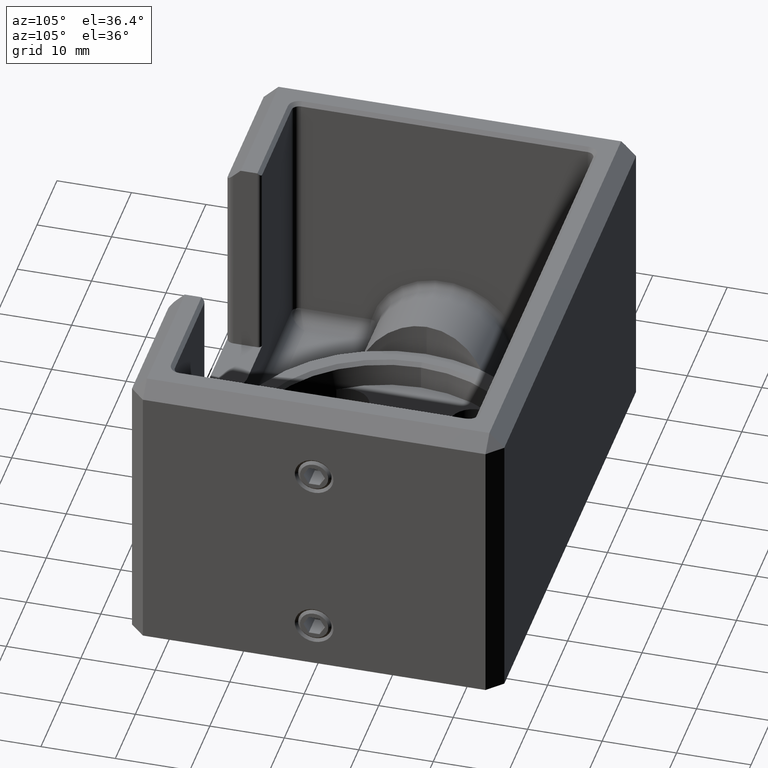
[diagram: clean part render]
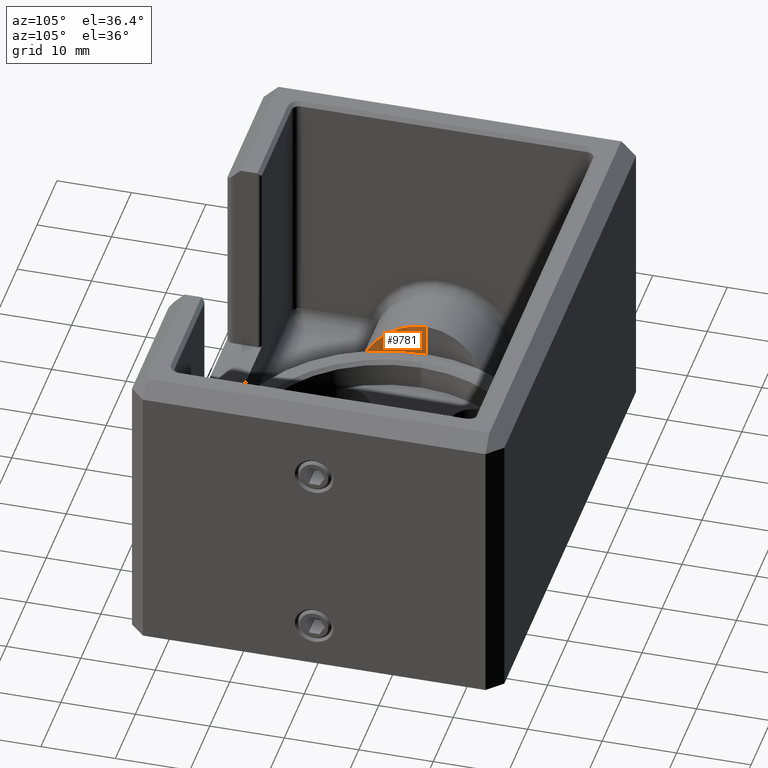
[diagram: same view with one face highlighted and labeled with its STEP entity id]
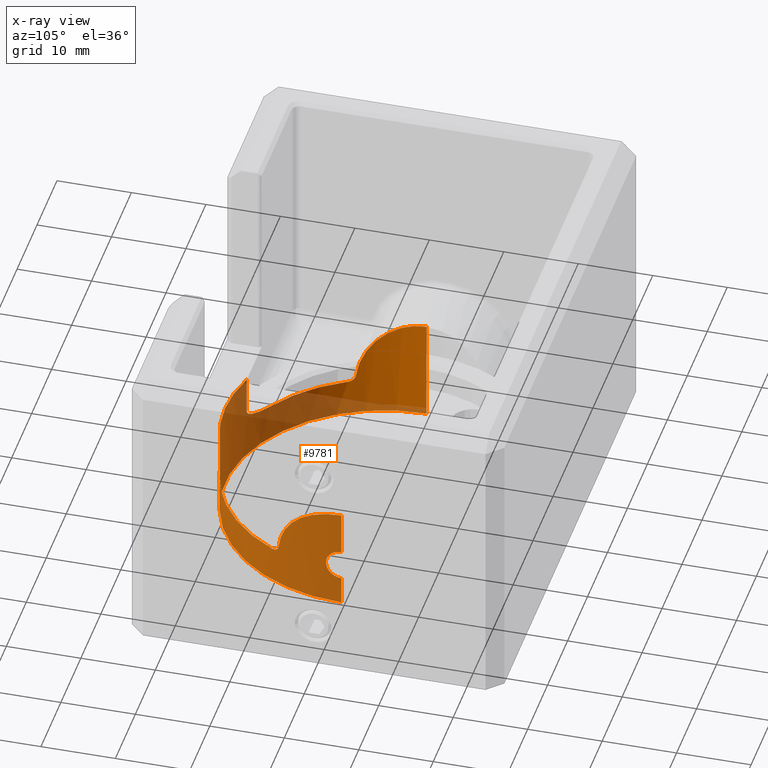
[diagram: x-ray of the same camera — body ghosted, the highlighted face saturated]
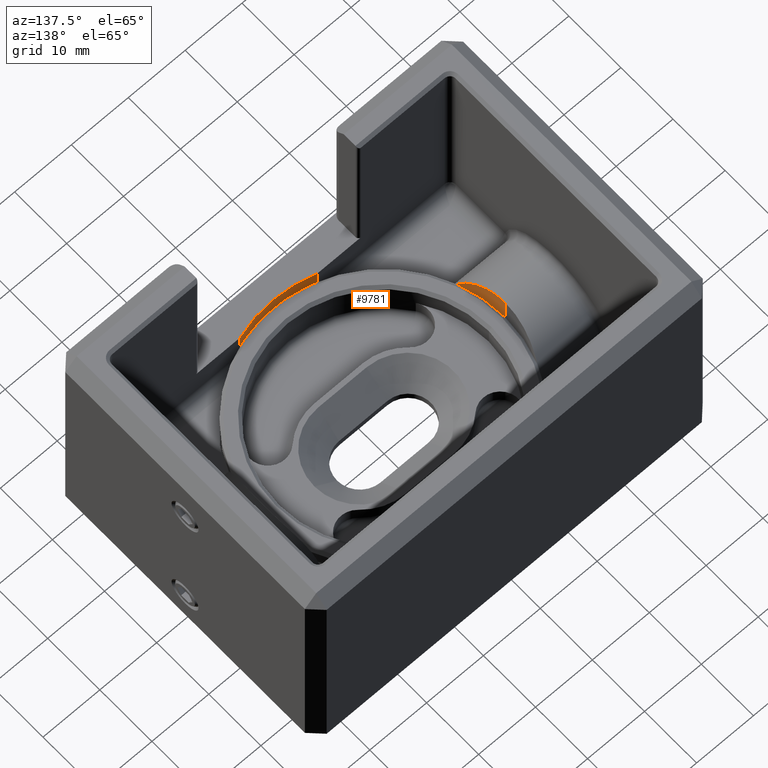
[diagram: same view with one face highlighted and labeled with its STEP entity id]
A machine part, auxiliary view. The second image highlights one B-rep face of the part: STEP entity #9781.
The next image is the same camera in x-ray: the body ghosted, the highlighted face saturated — about 68% of this face is hidden behind the body in this view.
A second angle (auxiliary view) of the same face is appended — the face is thin or edge-on in the first view.
In plain terms, the highlighted cylindrical surface (partial cylindrical patch) has radius 21.35 mm, axis along (0, 0, -1).
Its self-contained STEP definition (entity closure, byte-faithful):
#66 = AXIS2_PLACEMENT_3D ( 'NONE', #24698, #21131, #20793 ) ;
#226 = CARTESIAN_POINT ( 'NONE',  ( 6.897454490074142800, -20.20520898221429800, -13.43337875035638100 ) ) ;
#277 = CARTESIAN_POINT ( 'NONE',  ( 19.40728424377416800, -8.898520869713557600, -13.53916474196333500 ) ) ;
#481 = VERTEX_POINT ( 'NONE', #25150 ) ;
#522 = AXIS2_PLACEMENT_3D ( 'NONE', #11490, #21026, #23079 ) ;
#546 = VERTEX_POINT ( 'NONE', #3819 ) ;
#570 = ORIENTED_EDGE ( 'NONE', *, *, #11623, .F. ) ;
#616 = VERTEX_POINT ( 'NONE', #12023 ) ;
#622 = LINE ( 'NONE', #19117, #3045 ) ;
#1053 = CARTESIAN_POINT ( 'NONE',  ( -21.34457303634226100, -0.5563292019188824700, -6.012850639826334400 ) ) ;
#1085 = EDGE_CURVE ( 'NONE', #4277, #9054, #622, .T. ) ;
#1110 = CARTESIAN_POINT ( 'NONE',  ( 21.33965744953615500, -0.6765489511546167700, -12.00720468059319200 ) ) ;
#1135 = CARTESIAN_POINT ( 'NONE',  ( -20.87033471673592200, -4.506528579112247400, -7.204718538386204700 ) ) ;
#1449 = CARTESIAN_POINT ( 'NONE',  ( 21.05973220045990500, -3.518199210605375400, -6.711561277646654700 ) ) ;
#1480 = CARTESIAN_POINT ( 'NONE',  ( -19.38124093034293000, -8.954886933959583600, -14.10000000000000100 ) ) ;
#1536 = CIRCLE ( 'NONE', #8771, 21.35000000000000100 ) ;
#1557 = CARTESIAN_POINT ( 'NONE',  ( -21.35000000000000100, 0.0000000000000000000, -3.000000000000002700 ) ) ;
#1704 = CARTESIAN_POINT ( 'NONE',  ( 21.17883477685786500, -2.747661124834051400, -6.411977707186371900 ) ) ;
#1719 = EDGE_CURVE ( 'NONE', #24705, #546, #1536, .T. ) ;
#1805 = DIRECTION ( 'NONE',  ( 0.0000000000000000000, 0.0000000000000000000, -1.000000000000000000 ) ) ;
#2085 = CARTESIAN_POINT ( 'NONE',  ( 19.45683690325620300, -8.791069925867468300, -12.99454204343505000 ) ) ;
#2142 = ORIENTED_EDGE ( 'NONE', *, *, #21732, .T. ) ;
#2432 = LINE ( 'NONE', #2685, #13409 ) ;
#2685 = CARTESIAN_POINT ( 'NONE',  ( 21.35000000000000100, 2.614620916179599200E-015, -3.000000000000002700 ) ) ;
#2693 = VERTEX_POINT ( 'NONE', #6392 ) ;
#2881 = CARTESIAN_POINT ( 'NONE',  ( 21.34345156119554300, -0.5456270237093198100, -11.96747945263901900 ) ) ;
#2911 = CARTESIAN_POINT ( 'NONE',  ( -20.35749264248599700, -6.447649486485225600, -8.697247440804131800 ) ) ;
#2962 = CARTESIAN_POINT ( 'NONE',  ( 21.34349383741498900, -0.5438794262529336200, -16.03296225912980700 ) ) ;
#3001 = VERTEX_POINT ( 'NONE', #5689 ) ;
#3040 = CARTESIAN_POINT ( 'NONE',  ( 21.32436268798805700, -1.052196298051470300, -15.82255682788826700 ) ) ;
#3045 = VECTOR ( 'NONE', #11269, 1000.000000000000000 ) ;
#3163 = CARTESIAN_POINT ( 'NONE',  ( -19.40729494845407300, -8.898497701360714300, -13.53893421975653100 ) ) ;
#3185 = B_SPLINE_CURVE_WITH_KNOTS ( 'NONE', 3,
 ( #15448, #12257, #8415, #226, #13880, #19773, #4132, #8073, #21725, #4210, #17921, #6601, #4648, #10637, #18413, #8581 ),
 .UNSPECIFIED., .F., .F.,
 ( 4, 2, 2, 2, 2, 2, 2, 4 ),
 ( 0.0000000000000000000, 0.0003439432819631507300, 0.0006878865639263014600, 0.001375773127852604600, 0.002063659691778907800, 0.002751546255705211000, 0.004127319383557813100, 0.005503092511410415100 ),
 .UNSPECIFIED. ) ;
#3225 = CARTESIAN_POINT ( 'NONE',  ( 21.27225068665530100, -1.821995286969706900, -12.94688766812002500 ) ) ;
#3330 = DIRECTION ( 'NONE',  ( 1.000000000000000000, 0.0000000000000000000, 0.0000000000000000000 ) ) ;
#3394 = CARTESIAN_POINT ( 'NONE',  ( 20.92115074386770200, -4.265138914055530300, -7.069991442464843300 ) ) ;
#3496 = ORIENTED_EDGE ( 'NONE', *, *, #17486, .F. ) ;
#3545 = CARTESIAN_POINT ( 'NONE',  ( 21.35000000000000100, 2.614620931948651000E-015, -11.90000000000000700 ) ) ;
#3682 = LINE ( 'NONE', #24675, #11349 ) ;
#3819 = CARTESIAN_POINT ( 'NONE',  ( 11.07971118757164300, -18.24999999999999600, -15.00000000000000400 ) ) ;
#3821 = CARTESIAN_POINT ( 'NONE',  ( -9.107509127532027900, -19.31490467868898600, -14.70804452808124900 ) ) ;
#4095 = B_SPLINE_CURVE_WITH_KNOTS ( 'NONE', 3,
 ( #24804, #5255, #15356, #7493, #1704, #1449, #20900, #3394, #9294, #11266, #13203, #21150, #15186, #5423, #19113, #6311, #7955, #17887, #18051, #2085, #277, #21611 ),
 .UNSPECIFIED., .F., .F.,
 ( 4, 2, 2, 2, 2, 2, 2, 2, 2, 2, 4 ),
 ( 0.01333907636937384600, 0.01500535072044241300, 0.01667162507151098000, 0.01750476224704526300, 0.01833789942257954200, 0.02000417377364810400, 0.02167044812471666900, 0.02333672247578522800, 0.02416985965131951100, 0.02500299682685379000, 0.02666927117792234500 ),
 .UNSPECIFIED. ) ;
#4132 = CARTESIAN_POINT ( 'NONE',  ( 7.371077628922553700, -20.03817007610531300, -13.90603673963790500 ) ) ;
#4210 = CARTESIAN_POINT ( 'NONE',  ( 8.313779128395852400, -19.66588546234430300, -14.41757830462040800 ) ) ;
#4263 = B_SPLINE_CURVE_WITH_KNOTS ( 'NONE', 3,
 ( #23960, #14572, #18779, #2962, #14836, #14919, #3040, #12612, #24627, #18600, #16555, #14652, #10843, #8938, #12950, #8768, #20474, #4922, #3225, #16899, #6884, #20564, #4834, #24453, #22689, #1110, #2881, #16649, #16732, #12778 ),
 .UNSPECIFIED., .F., .F.,
 ( 4, 2, 2, 2, 2, 2, 2, 2, 2, 2, 2, 2, 2, 2, 4 ),
 ( 1.586472847432559400E-019, 0.0004105954145039687800, 0.0008211908290079371300, 0.001231786243511905600, 0.001642381658015874000, 0.002463572487023815200, 0.003284763316031756800, 0.003695358730535730600, 0.004105954145039703500, 0.004516549559543677800, 0.004927144974047650300, 0.005337740388551624600, 0.005748335803055598000, 0.006158931217559572200, 0.006569526632063545600 ),
 .UNSPECIFIED. ) ;
#4277 = VERTEX_POINT ( 'NONE', #18926 ) ;
#4361 = VERTEX_POINT ( 'NONE', #3545 ) ;
#4614 = EDGE_CURVE ( 'NONE', #22686, #4277, #12707, .T. ) ;
#4648 = CARTESIAN_POINT ( 'NONE',  ( 9.504092397154522600, -19.12312434257820100, -14.81268187304089200 ) ) ;
#4743 = B_SPLINE_CURVE_WITH_KNOTS ( 'NONE', 3,
 ( #24653, #3163, #7163, #18631, #10872, #14677, #22622, #16927, #14599, #24570, #2911, #12887, #8793, #1135, #22458, #20592, #10780, #12725, #16676, #8970, #14777, #1053, #4948, #6905 ),
 .UNSPECIFIED., .F., .F.,
 ( 4, 2, 2, 2, 2, 2, 2, 2, 2, 2, 2, 4 ),
 ( 8.969308846811181700E-016, 0.001667384546176687000, 0.002501076819264584600, 0.003334769092352482400, 0.005002153638528276800, 0.006669538184704069800, 0.008336922730879863700, 0.009170615003967760200, 0.01000430727705565700, 0.01167169182323145000, 0.01250538409631934600, 0.01333907636940724300 ),
 .UNSPECIFIED. ) ;
#4755 = B_SPLINE_CURVE_WITH_KNOTS ( 'NONE', 3,
 ( #23389, #13665, #19569, #9992, #5781, #11636, #7934, #15811, #11883, #7857 ),
 .UNSPECIFIED., .F., .F.,
 ( 4, 2, 2, 2, 4 ),
 ( 0.0000000000000000000, 0.0003893136741656869400, 0.0007786273483313738900, 0.001167941022497060900, 0.001557254696662747800 ),
 .UNSPECIFIED. ) ;
#4834 = CARTESIAN_POINT ( 'NONE',  ( 21.31183349450350000, -1.281100114322704500, -12.33042246573120200 ) ) ;
#4922 = CARTESIAN_POINT ( 'NONE',  ( 21.26644558298317000, -1.887746245809733600, -13.06975306104961200 ) ) ;
#4948 = CARTESIAN_POINT ( 'NONE',  ( -21.35000000000000500, -0.2779839422373777100, -5.999999999999996400 ) ) ;
#4954 = DIRECTION ( 'NONE',  ( 1.000000000000000000, 0.0000000000000000000, 0.0000000000000000000 ) ) ;
#5034 = DIRECTION ( 'NONE',  ( 0.0000000000000000000, -0.0000000000000000000, -1.000000000000000000 ) ) ;
#5255 = CARTESIAN_POINT ( 'NONE',  ( 21.35000000000000500, -0.5555977042291734300, -5.999999999999994700 ) ) ;
#5423 = CARTESIAN_POINT ( 'NONE',  ( 19.99784956463685500, -7.485403600454811000, -9.973579751477133800 ) ) ;
#5430 = CARTESIAN_POINT ( 'NONE',  ( -11.07971118757164300, -18.24999999999999600, -15.00000000000000400 ) ) ;
#5510 = CARTESIAN_POINT ( 'NONE',  ( -9.504634190343441700, -19.12284523795026200, -14.81279122985443100 ) ) ;
#5584 = CARTESIAN_POINT ( 'NONE',  ( -21.35000000000000100, 3.666511891496911000E-020, -5.999999999999995600 ) ) ;
#5689 = CARTESIAN_POINT ( 'NONE',  ( 19.38124093034288400, -8.954886933959675900, -14.10000000000090700 ) ) ;
#5741 = CARTESIAN_POINT ( 'NONE',  ( -19.30147851811654600, -9.125774135865350800, -14.58055188631169200 ) ) ;
#5781 = CARTESIAN_POINT ( 'NONE',  ( 19.17324059663244600, -9.392554471872038800, -14.83933054511251500 ) ) ;
#6311 = CARTESIAN_POINT ( 'NONE',  ( 19.73407901632224800, -8.149030121943093600, -11.16999020681402200 ) ) ;
#6384 = ORIENTED_EDGE ( 'NONE', *, *, #22228, .T. ) ;
#6392 = CARTESIAN_POINT ( 'NONE',  ( 6.764613810115117000, -20.24999999999999600, -8.000000000000000000 ) ) ;
#6601 = CARTESIAN_POINT ( 'NONE',  ( 9.104430768401210000, -19.31632292077450700, -14.70706416213156900 ) ) ;
#6607 = EDGE_LOOP ( 'NONE', ( #13477, #6384, #13493, #18129, #16542, #20672, #570, #21172, #3496, #12786, #15048, #7204, #7773, #17178, #10367, #2142 ) ) ;
#6867 = AXIS2_PLACEMENT_3D ( 'NONE', #20510, #5034, #4954 ) ;
#6884 = CARTESIAN_POINT ( 'NONE',  ( 21.29144588173533500, -1.583189485652112700, -12.61337206019482700 ) ) ;
#6905 = CARTESIAN_POINT ( 'NONE',  ( -21.35000000000000100, 3.666511891496911000E-020, -5.999999999999995600 ) ) ;
#7031 = EDGE_CURVE ( 'NONE', #13704, #616, #11456, .T. ) ;
#7163 = CARTESIAN_POINT ( 'NONE',  ( -19.45686017626110200, -8.791015990651741800, -12.99440548535199000 ) ) ;
#7183 = DIRECTION ( 'NONE',  ( 0.0000000000000000000, 0.0000000000000000000, -1.000000000000000000 ) ) ;
#7204 = ORIENTED_EDGE ( 'NONE', *, *, #21035, .T. ) ;
#7405 = CIRCLE ( 'NONE', #522, 21.35000000000000100 ) ;
#7409 = CARTESIAN_POINT ( 'NONE',  ( -6.764613810115124100, -20.24999999999999300, -13.11628602459676800 ) ) ;
#7493 = CARTESIAN_POINT ( 'NONE',  ( 21.24201094598230100, -2.215128425605856800, -6.258749738082103800 ) ) ;
#7503 = CARTESIAN_POINT ( 'NONE',  ( -8.510924742024506900, -19.58147342130631000, -14.49667566610316900 ) ) ;
#7520 = CARTESIAN_POINT ( 'NONE',  ( 0.0000000000000000000, 0.0000000000000000000, -15.00000000000000400 ) ) ;
#7639 = CARTESIAN_POINT ( 'NONE',  ( -19.37516986900495700, -8.968026653462658300, -14.23073855831973800 ) ) ;
#7660 = CARTESIAN_POINT ( 'NONE',  ( -6.764613810115117000, -20.24999999999999600, -13.00000000000000400 ) ) ;
#7773 = ORIENTED_EDGE ( 'NONE', *, *, #20260, .T. ) ;
#7849 = DIRECTION ( 'NONE',  ( -1.000000000000000000, 0.0000000000000000000, 0.0000000000000000000 ) ) ;
#7857 = CARTESIAN_POINT ( 'NONE',  ( 19.38124093034288400, -8.954886933959675900, -14.10000000000090700 ) ) ;
#7934 = CARTESIAN_POINT ( 'NONE',  ( 19.30111983816669900, -9.126536274410902600, -14.58180424871416900 ) ) ;
#7955 = CARTESIAN_POINT ( 'NONE',  ( 19.68616193680215100, -8.263766801814954400, -11.42413333220245300 ) ) ;
#8073 = CARTESIAN_POINT ( 'NONE',  ( 7.738333052283153700, -19.89922729611545900, -14.13951924968374700 ) ) ;
#8415 = CARTESIAN_POINT ( 'NONE',  ( 6.796350550098450700, -20.23944089291435600, -13.22974820781035100 ) ) ;
#8581 = CARTESIAN_POINT ( 'NONE',  ( 11.07971118757164300, -18.24999999999999600, -15.00000000000000400 ) ) ;
#8768 = CARTESIAN_POINT ( 'NONE',  ( 21.25303077551174600, -2.032709897630068600, -13.45506377781224600 ) ) ;
#8771 = AXIS2_PLACEMENT_3D ( 'NONE', #7520, #24910, #3330 ) ;
#8793 = CARTESIAN_POINT ( 'NONE',  ( -20.71109214906345000, -5.205943342449573100, -7.638002613714600200 ) ) ;
#8938 = CARTESIAN_POINT ( 'NONE',  ( 21.24646539522990800, -2.100049573651400400, -13.86370010045849600 ) ) ;
#8970 = CARTESIAN_POINT ( 'NONE',  ( -21.30621776288214500, -1.394008629422104600, -6.104235303800969300 ) ) ;
#9054 = VERTEX_POINT ( 'NONE', #18791 ) ;
#9294 = CARTESIAN_POINT ( 'NONE',  ( 20.87004969267722400, -4.507861781141081700, -7.205478149625332000 ) ) ;
#9383 = CARTESIAN_POINT ( 'NONE',  ( -8.313774510477591300, -19.66590570045595900, -14.41764498876192300 ) ) ;
#9533 = CARTESIAN_POINT ( 'NONE',  ( -19.35734226636590400, -9.006671246743042800, -14.35573804496833700 ) ) ;
#9555 = CARTESIAN_POINT ( 'NONE',  ( -7.367357941079974100, -20.03953128605180500, -13.90331749923868900 ) ) ;
#9648 = CARTESIAN_POINT ( 'NONE',  ( -7.924919363326444500, -19.82580002711281300, -14.23748153169924700 ) ) ;
#9698 = CARTESIAN_POINT ( 'NONE',  ( -18.88974589559107600, -9.949874371066203000, -15.00000000000000400 ) ) ;
#9781 = ADVANCED_FACE ( 'NONE', ( #17169 ), #18094, .F. ) ;
#9932 = EDGE_CURVE ( 'NONE', #14135, #4361, #4263, .T. ) ;
#9992 = CARTESIAN_POINT ( 'NONE',  ( 19.12209709088307400, -9.496498372507606000, -14.89917651518112900 ) ) ;
#10211 = EDGE_CURVE ( 'NONE', #12261, #546, #3185, .T. ) ;
#10283 = EDGE_CURVE ( 'NONE', #14135, #13704, #20504, .T. ) ;
#10367 = ORIENTED_EDGE ( 'NONE', *, *, #1719, .F. ) ;
#10411 = CARTESIAN_POINT ( 'NONE',  ( -11.07971118757164300, -18.24999999999999600, -15.00000000000000400 ) ) ;
#10637 = CARTESIAN_POINT ( 'NONE',  ( 10.29488700182924900, -18.70927466618961100, -14.95888449670981900 ) ) ;
#10780 = CARTESIAN_POINT ( 'NONE',  ( -21.06003257001632900, -3.516372721070495400, -6.710800107317230500 ) ) ;
#10843 = CARTESIAN_POINT ( 'NONE',  ( 21.24648013575738000, -2.099900438318156800, -14.27488478820259100 ) ) ;
#10872 = CARTESIAN_POINT ( 'NONE',  ( -19.59910650519315900, -8.468164037953720000, -11.93949658545156100 ) ) ;
#10907 = VERTEX_POINT ( 'NONE', #21507 ) ;
#10930 = VECTOR ( 'NONE', #11380, 1000.000000000000000 ) ;
#11266 = CARTESIAN_POINT ( 'NONE',  ( 20.71058571584269000, -5.208004162583637100, -7.639412557550441500 ) ) ;
#11269 = DIRECTION ( 'NONE',  ( -0.0000000000000000000, -0.0000000000000000000, 1.000000000000000000 ) ) ;
#11288 = EDGE_CURVE ( 'NONE', #10907, #3001, #4095, .T. ) ;
#11349 = VECTOR ( 'NONE', #7183, 1000.000000000000000 ) ;
#11380 = DIRECTION ( 'NONE',  ( 0.0000000000000000000, 0.0000000000000000000, -1.000000000000000000 ) ) ;
#11450 = CARTESIAN_POINT ( 'NONE',  ( -10.68778171055671500, -18.48794331020389900, -15.00000000000000700 ) ) ;
#11456 = CIRCLE ( 'NONE', #6867, 21.35000000000000100 ) ;
#11490 = CARTESIAN_POINT ( 'NONE',  ( 0.0000000000000000000, 0.0000000000000000000, -15.00000000000000400 ) ) ;
#11623 = EDGE_CURVE ( 'NONE', #12524, #18684, #4743, .T. ) ;
#11636 = CARTESIAN_POINT ( 'NONE',  ( 19.26349586323227200, -9.206028547135355600, -14.67954000926860700 ) ) ;
#11883 = CARTESIAN_POINT ( 'NONE',  ( 19.37514533812933900, -8.968079746127500600, -14.23126682367879100 ) ) ;
#12023 = CARTESIAN_POINT ( 'NONE',  ( -21.35000000000000100, 0.0000000000000000000, -20.00000000000000000 ) ) ;
#12257 = CARTESIAN_POINT ( 'NONE',  ( 6.764613810115116100, -20.25000000000000000, -13.11677940156346100 ) ) ;
#12261 = VERTEX_POINT ( 'NONE', #21634 ) ;
#12524 = VERTEX_POINT ( 'NONE', #1480 ) ;
#12612 = CARTESIAN_POINT ( 'NONE',  ( 21.31187631602431800, -1.280425315655649500, -15.67013216589091600 ) ) ;
#12707 = B_SPLINE_CURVE_WITH_KNOTS ( 'NONE', 3,
 ( #5430, #11450, #13212, #5510, #3821, #7503, #9383, #9648, #19283, #9555, #24972, #23035, #15191, #15539, #7409, #7660 ),
 .UNSPECIFIED., .F., .F.,
 ( 4, 2, 2, 2, 2, 2, 2, 4 ),
 ( 0.0000000000000000000, 0.001355361921651316300, 0.002710723843302632500, 0.003388404804128291100, 0.004066085764953949700, 0.004743766725779610000, 0.005082607206192442700, 0.005421447686605275500 ),
 .UNSPECIFIED. ) ;
#12725 = CARTESIAN_POINT ( 'NONE',  ( -21.17890823774381200, -2.746951348636686300, -6.411804253183331200 ) ) ;
#12731 = B_SPLINE_CURVE_WITH_KNOTS ( 'NONE', 3,
 ( #17123, #7639, #9533, #5741, #21135, #19354, #25216, #21381, #23174, #9698 ),
 .UNSPECIFIED., .F., .F.,
 ( 4, 2, 2, 2, 4 ),
 ( 0.0000000000000000000, 0.0003887041687461756400, 0.0007774083374923512800, 0.001166112506238527000, 0.001554816674984702600 ),
 .UNSPECIFIED. ) ;
#12778 = CARTESIAN_POINT ( 'NONE',  ( 21.35000000000000100, 2.614620931948651000E-015, -11.90000000000000700 ) ) ;
#12786 = ORIENTED_EDGE ( 'NONE', *, *, #4614, .T. ) ;
#12887 = CARTESIAN_POINT ( 'NONE',  ( -20.59581882178001400, -5.640207234655143500, -7.965446988385029000 ) ) ;
#12950 = CARTESIAN_POINT ( 'NONE',  ( 21.24782995324328300, -2.086372198537504100, -13.72447130213843100 ) ) ;
#13097 = EDGE_CURVE ( 'NONE', #18684, #616, #16421, .T. ) ;
#13203 = CARTESIAN_POINT ( 'NONE',  ( 20.59514447880020400, -5.642699157302113900, -7.967390566733510800 ) ) ;
#13212 = CARTESIAN_POINT ( 'NONE',  ( -10.29467864534399300, -18.70937927019336300, -14.95883678201279000 ) ) ;
#13264 = CARTESIAN_POINT ( 'NONE',  ( 21.35000000000000100, 4.693961931060656500E-015, -16.09999999999999400 ) ) ;
#13409 = VECTOR ( 'NONE', #20194, 1000.000000000000000 ) ;
#13477 = ORIENTED_EDGE ( 'NONE', *, *, #11288, .F. ) ;
#13493 = ORIENTED_EDGE ( 'NONE', *, *, #9932, .F. ) ;
#13665 = CARTESIAN_POINT ( 'NONE',  ( 18.95105731294555800, -9.833475203485500400, -14.99999999999303100 ) ) ;
#13704 = VERTEX_POINT ( 'NONE', #16642 ) ;
#13880 = CARTESIAN_POINT ( 'NONE',  ( 6.966020467826156800, -20.18175978552256200, -13.52517416837147800 ) ) ;
#14135 = VERTEX_POINT ( 'NONE', #13264 ) ;
#14572 = CARTESIAN_POINT ( 'NONE',  ( 21.35000000000000500, -0.1388421949928304300, -16.09999999999999800 ) ) ;
#14599 = CARTESIAN_POINT ( 'NONE',  ( -19.99819903870207200, -7.484511757972315500, -9.972124418872262200 ) ) ;
#14652 = CARTESIAN_POINT ( 'NONE',  ( 21.25212372826662800, -2.044700016993617800, -14.55138522807055200 ) ) ;
#14677 = CARTESIAN_POINT ( 'NONE',  ( -19.68594749550398500, -8.264275478216962500, -11.42533440104995900 ) ) ;
#14777 = CARTESIAN_POINT ( 'NONE',  ( -21.32275420703898700, -1.113756396551011800, -6.064794210981241400 ) ) ;
#14836 = CARTESIAN_POINT ( 'NONE',  ( 21.33963327173700400, -0.6773045637642243200, -15.99253746890105900 ) ) ;
#14919 = CARTESIAN_POINT ( 'NONE',  ( 21.33004475773386600, -0.9316009217421292700, -15.88707889598704000 ) ) ;
#15048 = ORIENTED_EDGE ( 'NONE', *, *, #1085, .T. ) ;
#15186 = CARTESIAN_POINT ( 'NONE',  ( 20.23269301468499000, -6.825202388579064900, -9.108244749538236800 ) ) ;
#15191 = CARTESIAN_POINT ( 'NONE',  ( -6.896235803447842400, -20.20562303290413200, -13.43124275300423100 ) ) ;
#15356 = CARTESIAN_POINT ( 'NONE',  ( 21.32834393135350100, -1.109760387225591700, -6.050995476236923100 ) ) ;
#15448 = CARTESIAN_POINT ( 'NONE',  ( 6.764613810115117000, -20.24999999999999600, -13.00000000000000200 ) ) ;
#15539 = CARTESIAN_POINT ( 'NONE',  ( -6.796525831862142700, -20.23938010467248800, -13.22977936804053400 ) ) ;
#15811 = CARTESIAN_POINT ( 'NONE',  ( 19.35740242173145000, -9.006545556347099100, -14.35568603083855300 ) ) ;
#16421 = LINE ( 'NONE', #1557, #10930 ) ;
#16446 = CARTESIAN_POINT ( 'NONE',  ( 21.35000000000000100, 2.614620916179599200E-015, -3.000000000000002700 ) ) ;
#16499 = CARTESIAN_POINT ( 'NONE',  ( 18.88974589559107600, -9.949874371066203000, -15.00000000000000400 ) ) ;
#16542 = ORIENTED_EDGE ( 'NONE', *, *, #7031, .T. ) ;
#16555 = CARTESIAN_POINT ( 'NONE',  ( 21.27123656657649100, -1.835226430113280300, -15.05677234040345200 ) ) ;
#16642 = CARTESIAN_POINT ( 'NONE',  ( 21.35000000000000100, 2.614620916179599200E-015, -20.00000000000000000 ) ) ;
#16649 = CARTESIAN_POINT ( 'NONE',  ( 21.34863603521043300, -0.2763563464387836000, -11.91374119672810400 ) ) ;
#16676 = CARTESIAN_POINT ( 'NONE',  ( -21.24173192948442000, -2.216760318337103200, -6.259431823548671200 ) ) ;
#16732 = CARTESIAN_POINT ( 'NONE',  ( 21.35000000000000100, -0.1370978309578983200, -11.90000000000000400 ) ) ;
#16899 = CARTESIAN_POINT ( 'NONE',  ( 21.28472421178909400, -1.669979439910971100, -12.71942158398161400 ) ) ;
#16927 = CARTESIAN_POINT ( 'NONE',  ( -19.88573255472296700, -7.775132808894501800, -10.43368456234682500 ) ) ;
#17123 = CARTESIAN_POINT ( 'NONE',  ( -19.38124093034293000, -8.954886933959583600, -14.10000000000000100 ) ) ;
#17169 = FACE_OUTER_BOUND ( 'NONE', #6607, .T. ) ;
#17178 = ORIENTED_EDGE ( 'NONE', *, *, #10211, .T. ) ;
#17337 = CARTESIAN_POINT ( 'NONE',  ( 0.0000000000000000000, 0.0000000000000000000, -3.000000000000002700 ) ) ;
#17486 = EDGE_CURVE ( 'NONE', #22686, #481, #7405, .T. ) ;
#17887 = CARTESIAN_POINT ( 'NONE',  ( 19.59919895132398400, -8.467952174120812400, -11.93888089786317500 ) ) ;
#17921 = CARTESIAN_POINT ( 'NONE',  ( 8.509829143304543200, -19.58194144232964000, -14.49623198417076400 ) ) ;
#18051 = CARTESIAN_POINT ( 'NONE',  ( 19.56000097966843000, -8.557808706422498800, -12.19998157889490500 ) ) ;
#18094 = CYLINDRICAL_SURFACE ( 'NONE', #18232, 21.35000000000000100 ) ;
#18129 = ORIENTED_EDGE ( 'NONE', *, *, #10283, .T. ) ;
#18232 = AXIS2_PLACEMENT_3D ( 'NONE', #17337, #1805, #7849 ) ;
#18413 = CARTESIAN_POINT ( 'NONE',  ( 10.68806797849759600, -18.48776951480077800, -15.00000000000000900 ) ) ;
#18600 = CARTESIAN_POINT ( 'NONE',  ( 21.28477828086166600, -1.678800914913103100, -15.29097250341011200 ) ) ;
#18631 = CARTESIAN_POINT ( 'NONE',  ( -19.55994885418739000, -8.557927222066757300, -12.20036171299026700 ) ) ;
#18684 = VERTEX_POINT ( 'NONE', #5584 ) ;
#18779 = CARTESIAN_POINT ( 'NONE',  ( 21.34864674633682200, -0.2753472683631911800, -16.08636628115781900 ) ) ;
#18791 = CARTESIAN_POINT ( 'NONE',  ( -6.764613810115117000, -20.24999999999999600, -8.000000000000000000 ) ) ;
#18926 = CARTESIAN_POINT ( 'NONE',  ( -6.764613810115117000, -20.24999999999999600, -13.00000000000000400 ) ) ;
#19113 = CARTESIAN_POINT ( 'NONE',  ( 19.88563655484857100, -7.775360121024167600, -10.43420951364791600 ) ) ;
#19117 = CARTESIAN_POINT ( 'NONE',  ( -6.764613810115117000, -20.24999999999999600, -3.000000000000002700 ) ) ;
#19283 = CARTESIAN_POINT ( 'NONE',  ( -7.733363495971443200, -19.90115238461882500, -14.13670600022901000 ) ) ;
#19354 = CARTESIAN_POINT ( 'NONE',  ( -19.17394505091315800, -9.391106687015275500, -14.83822934649400900 ) ) ;
#19569 = CARTESIAN_POINT ( 'NONE',  ( 19.00975927313727400, -9.719420294933760500, -14.98028522397401300 ) ) ;
#19773 = CARTESIAN_POINT ( 'NONE',  ( 7.192046277305496300, -20.10279699792867400, -13.77276024018702700 ) ) ;
#19890 = VECTOR ( 'NONE', #22397, 1000.000000000000000 ) ;
#20194 = DIRECTION ( 'NONE',  ( 0.0000000000000000000, 0.0000000000000000000, -1.000000000000000000 ) ) ;
#20260 = EDGE_CURVE ( 'NONE', #2693, #12261, #3682, .T. ) ;
#20474 = CARTESIAN_POINT ( 'NONE',  ( 21.25683824055894500, -1.993018223013477400, -13.32411271743616900 ) ) ;
#20504 = LINE ( 'NONE', #16446, #19890 ) ;
#20510 = CARTESIAN_POINT ( 'NONE',  ( 0.0000000000000000000, 0.0000000000000000000, -20.00000000000000000 ) ) ;
#20564 = CARTESIAN_POINT ( 'NONE',  ( 21.30511747322490400, -1.387128737511709200, -12.41724927531310000 ) ) ;
#20592 = CARTESIAN_POINT ( 'NONE',  ( -21.01629101478005900, -3.768508186117195200, -6.822286315484793900 ) ) ;
#20672 = ORIENTED_EDGE ( 'NONE', *, *, #13097, .F. ) ;
#20793 = DIRECTION ( 'NONE',  ( -1.000000000000000000, 0.0000000000000000000, 0.0000000000000000000 ) ) ;
#20900 = CARTESIAN_POINT ( 'NONE',  ( 21.01596146369803000, -3.770321227718647100, -6.823134859950040500 ) ) ;
#21026 = DIRECTION ( 'NONE',  ( 0.0000000000000000000, -0.0000000000000000000, -1.000000000000000000 ) ) ;
#21035 = EDGE_CURVE ( 'NONE', #9054, #2693, #25023, .T. ) ;
#21131 = DIRECTION ( 'NONE',  ( -0.0000000000000000000, -0.0000000000000000000, 1.000000000000000000 ) ) ;
#21135 = CARTESIAN_POINT ( 'NONE',  ( -19.26343039532511300, -9.206155713803935800, -14.67950888215222000 ) ) ;
#21150 = CARTESIAN_POINT ( 'NONE',  ( 20.35647728202485900, -6.450880757608080000, -8.700493140581333100 ) ) ;
#21172 = ORIENTED_EDGE ( 'NONE', *, *, #23975, .T. ) ;
#21381 = CARTESIAN_POINT ( 'NONE',  ( -19.01078495782231300, -9.717395245752493700, -14.97964364018164400 ) ) ;
#21507 = CARTESIAN_POINT ( 'NONE',  ( 21.35000000000000100, 2.614584251032007600E-015, -5.999999999999996400 ) ) ;
#21611 = CARTESIAN_POINT ( 'NONE',  ( 19.38124093034288400, -8.954886933959675900, -14.10000000000090700 ) ) ;
#21634 = CARTESIAN_POINT ( 'NONE',  ( 6.764613810115117000, -20.24999999999999600, -13.00000000000000200 ) ) ;
#21725 = CARTESIAN_POINT ( 'NONE',  ( 7.928113964773395100, -19.82450461866225300, -14.23902990198770800 ) ) ;
#21732 = EDGE_CURVE ( 'NONE', #24705, #3001, #4755, .T. ) ;
#22228 = EDGE_CURVE ( 'NONE', #10907, #4361, #2432, .T. ) ;
#22397 = DIRECTION ( 'NONE',  ( 0.0000000000000000000, 0.0000000000000000000, -1.000000000000000000 ) ) ;
#22458 = CARTESIAN_POINT ( 'NONE',  ( -20.92137758504453900, -4.264047597149126300, -7.069391376195345500 ) ) ;
#22622 = CARTESIAN_POINT ( 'NONE',  ( -19.73387340681248100, -8.149532362189772200, -11.17101789040105700 ) ) ;
#22686 = VERTEX_POINT ( 'NONE', #10411 ) ;
#22689 = CARTESIAN_POINT ( 'NONE',  ( 21.33007488975697200, -0.9309155408584628400, -12.11258167749004500 ) ) ;
#23035 = CARTESIAN_POINT ( 'NONE',  ( -6.963839596951985700, -20.18251118341881800, -13.52240552568450700 ) ) ;
#23079 = DIRECTION ( 'NONE',  ( 1.000000000000000000, 1.776356839400250500E-015, 0.0000000000000000000 ) ) ;
#23174 = CARTESIAN_POINT ( 'NONE',  ( -18.95088268016582600, -9.833806742227748600, -15.00000000000706500 ) ) ;
#23389 = CARTESIAN_POINT ( 'NONE',  ( 18.88974589559107600, -9.949874371066203000, -15.00000000000000400 ) ) ;
#23960 = CARTESIAN_POINT ( 'NONE',  ( 21.35000000000000100, 4.693961931060656500E-015, -16.09999999999999400 ) ) ;
#23975 = EDGE_CURVE ( 'NONE', #12524, #481, #12731, .T. ) ;
#24453 = CARTESIAN_POINT ( 'NONE',  ( 21.32428527398892000, -1.053718156765790100, -12.17835659583033700 ) ) ;
#24570 = CARTESIAN_POINT ( 'NONE',  ( -20.23358389697169500, -6.822606813453199400, -9.105130588078992600 ) ) ;
#24627 = CARTESIAN_POINT ( 'NONE',  ( 21.30502786179386400, -1.388417283285474600, -15.58146864546619200 ) ) ;
#24653 = CARTESIAN_POINT ( 'NONE',  ( -19.38124093034293000, -8.954886933959583600, -14.10000000000000100 ) ) ;
#24675 = CARTESIAN_POINT ( 'NONE',  ( 6.764613810115117000, -20.24999999999999600, -3.000000000000002700 ) ) ;
#24698 = CARTESIAN_POINT ( 'NONE',  ( 0.0000000000000000000, 0.0000000000000000000, -8.000000000000000000 ) ) ;
#24705 = VERTEX_POINT ( 'NONE', #16499 ) ;
#24804 = CARTESIAN_POINT ( 'NONE',  ( 21.35000000000000100, 2.614584251032007600E-015, -5.999999999999996400 ) ) ;
#24910 = DIRECTION ( 'NONE',  ( 0.0000000000000000000, -0.0000000000000000000, -1.000000000000000000 ) ) ;
#24972 = CARTESIAN_POINT ( 'NONE',  ( -7.188993282998589000, -20.10388405210817800, -13.77015709472618000 ) ) ;
#25023 = CIRCLE ( 'NONE', #66, 21.35000000000000100 ) ;
#25150 = CARTESIAN_POINT ( 'NONE',  ( -18.88974589559107600, -9.949874371066203000, -15.00000000000000400 ) ) ;
#25216 = CARTESIAN_POINT ( 'NONE',  ( -19.12179641389900900, -9.497084656889981600, -14.89929398987006700 ) ) ;